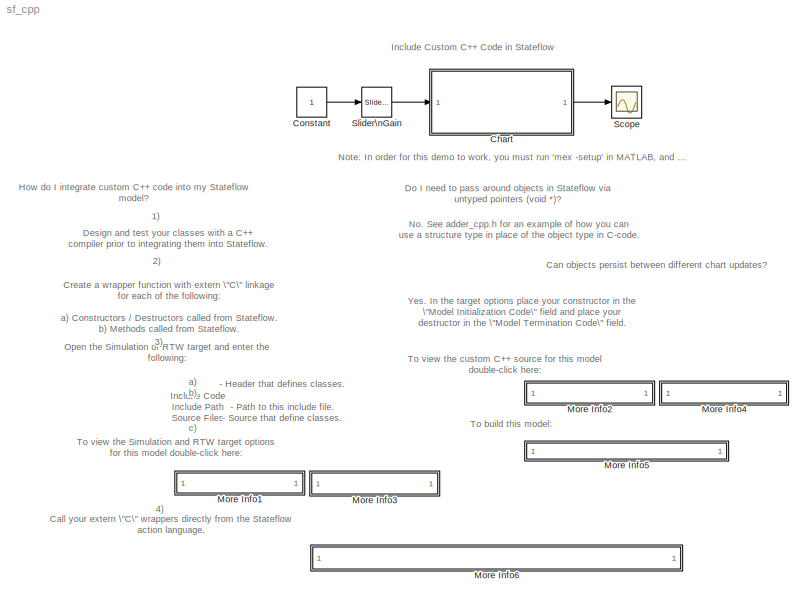
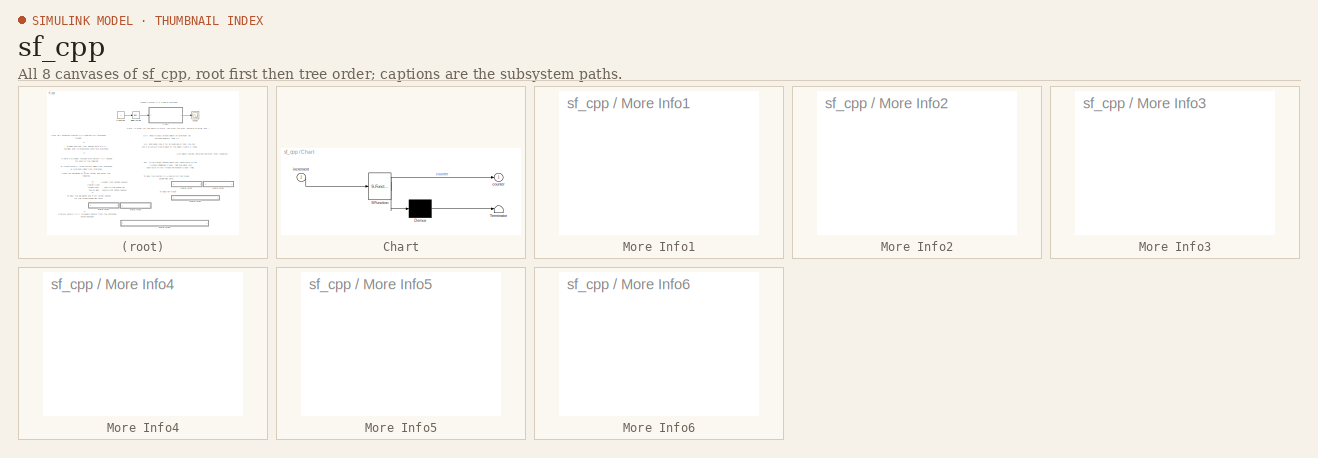
[diagram: thumbnail index - all 8 canvases of the model, root first then tree order]
MODEL sf_cpp
KIND model
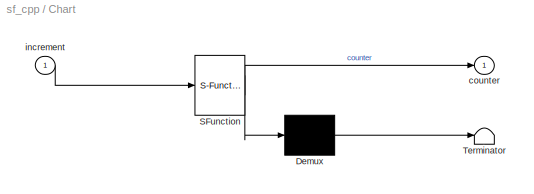
BLOCK [SubSystem] Chart
  MaskDescription = Stateflow diagram
  MaskDisplay = plot(sf('Private','sfblk','xIcon'),sf('Private','sfblk','yIcon'));text(0.5,0,sf('Private', 'sfblk', 'tIcon'),'HorizontalAl','Center','VerticalAl','Bottom');
  MaskIconFrame = off
  MaskIconOpaque = off
  MaskIconRotate = none
  MaskIconUnits = autoscale
  MaskSelfModifiable = on
  MaskType = Stateflow
  MinAlgLoopOccurrences = off
  Ports = [1, 1]
  PropExecContextAcrossSSBoundary = on
  RTWSystemCode = Auto
  TreatAsAtomicUnit = off
BLOCK [Demux] Chart/ Demux 
  Outputs = 1
  Ports = [1, 1]
BLOCK [S-Function] Chart/ SFunction 
  FunctionName = sf_sfun
  PortCounts = [1 2]
  Ports = [1, 2]
  Tag = Stateflow S-Function sf_cpp 1
BLOCK [Terminator] Chart/ Terminator 
BLOCK [Outport] Chart/counter
  BusOutputAsStruct = off
  IconDisplay = Port number
BLOCK [Inport] Chart/increment
  IconDisplay = Port number
  LatchInput = off
  Port = 1
BLOCK [Constant] Constant
BLOCK [SubSystem] More Info1
  MaskDisplay = disp('Simulation target')
  MaskIconFrame = on
  MaskIconOpaque = on
  MaskIconRotate = none
  MaskIconUnits = autoscale
  MinAlgLoopOccurrences = off
  OpenFcn = rt=sfroot;                                                    \nm=rt.find('-isa','Stateflow.Machine','-and', 'name','sf_cpp');\ntar=m.find('-isa','Stateflow.Target','-and','name','sfun');   \nsf('Private','targetddg_btn_target_cb',tar,'Target Options');
  Ports = []
  PropExecContextAcrossSSBoundary = on
  RTWSystemCode = Auto
  TreatAsAtomicUnit = off
BLOCK [SubSystem] More Info2
  MaskDisplay = disp('adder_cpp.cpp')
  MaskIconFrame = on
  MaskIconOpaque = on
  MaskIconRotate = none
  MaskIconUnits = autoscale
  MinAlgLoopOccurrences = off
  OpenFcn = filename=fullfile(matlabroot, 'toolbox', 'stateflow', 'sfdemos', 'custom_cpp_src', 'adder_cpp.cpp');\neval('edit(filename)')
  Ports = []
  PropExecContextAcrossSSBoundary = on
  RTWSystemCode = Auto
  TreatAsAtomicUnit = off
BLOCK [SubSystem] More Info3
  MaskDisplay = disp('RTW target')
  MaskIconFrame = on
  MaskIconOpaque = on
  MaskIconRotate = none
  MaskIconUnits = autoscale
  MinAlgLoopOccurrences = off
  OpenFcn = slCfgPrmDlg(bdroot,'Open');                    \nslCfgPrmDlg(bdroot,'TurnToPage','Custom Code');
  Ports = []
  PropExecContextAcrossSSBoundary = on
  RTWSystemCode = Auto
  TreatAsAtomicUnit = off
BLOCK [SubSystem] More Info4
  MaskDisplay = disp('adder_cpp.h')
  MaskIconFrame = on
  MaskIconOpaque = on
  MaskIconRotate = none
  MaskIconUnits = autoscale
  MinAlgLoopOccurrences = off
  OpenFcn = filename=fullfile(matlabroot, 'toolbox', 'stateflow', 'sfdemos', 'custom_cpp_src', 'adder_cpp.h');\neval('edit(filename)')
  Ports = []
  PropExecContextAcrossSSBoundary = on
  RTWSystemCode = Auto
  TreatAsAtomicUnit = off
BLOCK [SubSystem] More Info5
  MaskDisplay = disp('Double click to build model')
  MaskIconFrame = on
  MaskIconOpaque = on
  MaskIconRotate = none
  MaskIconUnits = autoscale
  MinAlgLoopOccurrences = off
  OpenFcn = rtwbuild('sf_cpp')
  Ports = []
  PropExecContextAcrossSSBoundary = on
  RTWSystemCode = Auto
  TreatAsAtomicUnit = off
BLOCK [SubSystem] More Info6
  MaskDisplay = disp('matlabroot<path>')
  MaskIconFrame = on
  MaskIconOpaque = on
  MaskIconRotate = none
  MaskIconUnits = autoscale
  MinAlgLoopOccurrences = off
  OpenFcn = filename=fullfile(matlabroot, 'toolbox', 'stateflow', 'sfdemos', 'custom_cpp_src', 'adder_cpp.cpp');\neval('edit(filename)')
  Ports = []
  PropExecContextAcrossSSBoundary = on
  RTWSystemCode = Auto
  TreatAsAtomicUnit = off
BLOCK [Scope] Scope
  DataFormat = StructureWithTime
  NumInputPorts = 1
  Ports = [1]
  YMax = 105
  YMin = 15
BLOCK [Reference] Slider\nGain  REF=simulink/Math\nOperations/Slider\nGain
  Ports = [1, 1]
  ShowPortLabels = on
  SourceBlock = simulink/Math\nOperations/Slider\nGain
  SourceType = Slider Gain
  gain = 5
  high = 5
  low = 0
ANNOTATION (root): - Header that defines classes.\n- Path to this include file.\n- Source that define classes.
ANNOTATION (root): 1)
ANNOTATION (root): 2)
ANNOTATION (root): 3)
ANNOTATION (root): 4)
ANNOTATION (root): Call your extern \"C\" wrappers directly from the Stateflow\naction language.
ANNOTATION (root): Can objects persist between different chart updates?
ANNOTATION (root): Create a wrapper function with extern \"C\" linkage\nfor each of the following:\n\n a) Constructors / Destructors called from Stateflow.\n b) Methods called from Stateflow.
ANNOTATION (root): Design and test your classes with a C++\ncompiler prior to integrating them into Stateflow.
ANNOTATION (root): Do I need to pass around objects in Stateflow via\nuntyped pointers (void *)?
ANNOTATION (root): How do I integrate custom C++ code into my Stateflow\nmodel?
ANNOTATION (root): Include Code\nInclude Path\nSource Files
ANNOTATION (root): Include Custom C++ Code in Stateflow
ANNOTATION (root): No. See adder_cpp.h for an example of how you can \nuse a structure type in place of the object type in C-code.
ANNOTATION (root): Note: In order for this demo to work, you must run 'mex -setup' in MATLAB, and select a C++ compiler.
ANNOTATION (root): Open the Simulation or RTW target and enter the\nfollowing:
ANNOTATION (root): To build this model:
ANNOTATION (root): To view the Simulation and RTW target options\nfor this model double-click here:
ANNOTATION (root): To view the custom C++ source for this model\ndouble-click here:
ANNOTATION (root): Yes. In the target options place your constructor in the\n\"Model Initialization Code\" field and place your\ndestructor in the \"Model Termination Code\" field.
ANNOTATION (root): a)\nb)\nc)
ANNOTATION More Info1: \n\n\n
ANNOTATION More Info2: \n\n\n
ANNOTATION More Info3: \n\n\n
ANNOTATION More Info4: \n\n\n
ANNOTATION More Info5: \n\n\n
ANNOTATION More Info6: \n\n\n
LINE Chart/ Demux :1 -> Chart/ Terminator :1
LINE Chart/ SFunction :1 -> Chart/ Demux :1
LINE Chart/ SFunction :2 -> Chart/counter:1
LINE Chart/increment:1 -> Chart/ SFunction :1
LINE Chart:1 -> Scope:1
LINE Constant:1 -> Slider\nGain:1
LINE Slider\nGain:1 -> Chart:1
CHART Chart states=3 transitions=3
  STATE_LABEL 'under_100\\nduring: counter = adderOutput(adderVar, increment);'
  STATE_LABEL 'over_100\\nduring: counter = adderOutput(adderVar, -increment);'
  STATE_LABEL 'NOTE: Please see \\"Target Options\\" for calls to\\n           constructor and destructor.'
note: 1 file-system path scrubbed to <path> (not preserved elsewhere — flat text is the only slx artifact)
